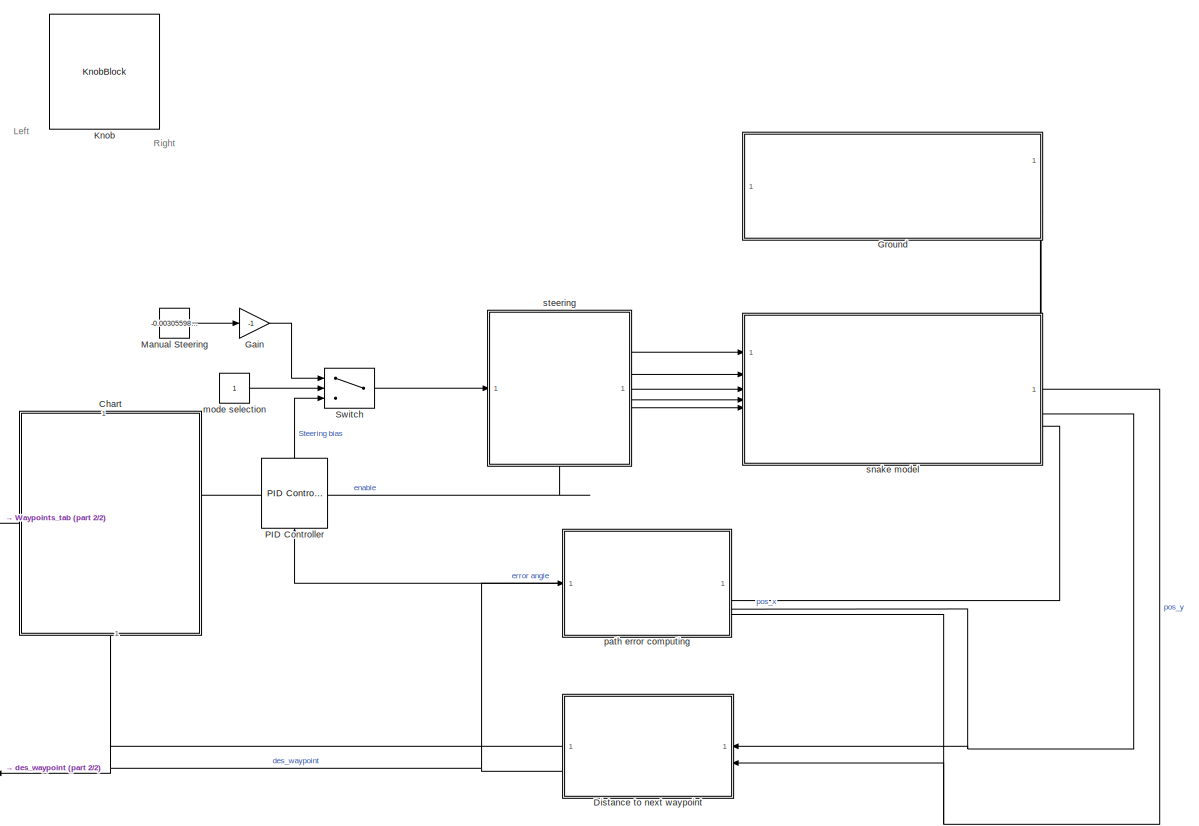
[diagram: root canvas - part 1/2, center side, full height]
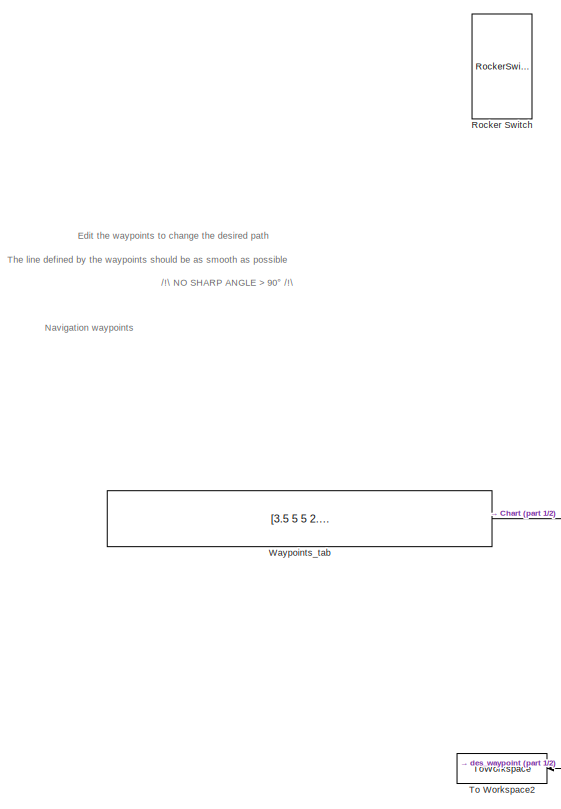
[diagram: root canvas - part 2/2, left side, full height]
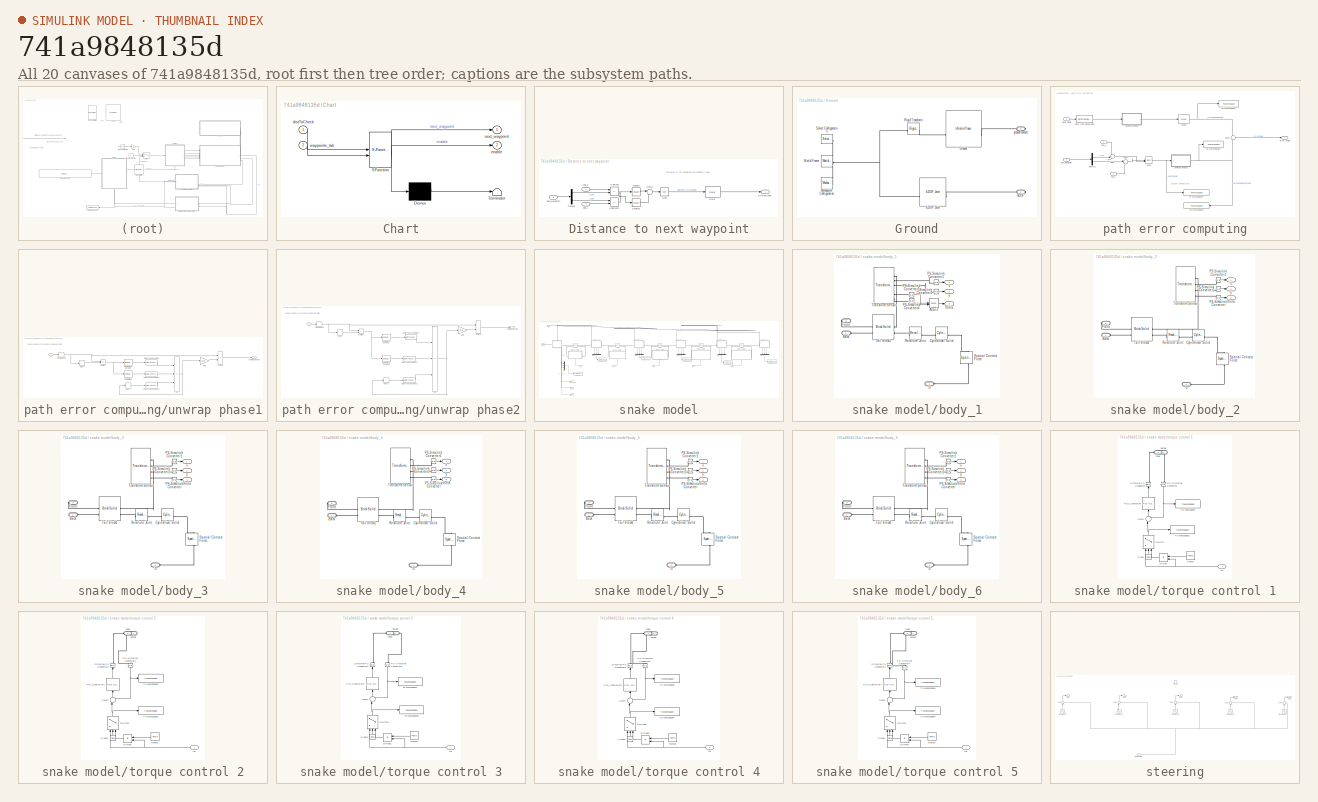
[diagram: thumbnail index - all 20 canvases of the model, root first then tree order]
MODEL slx_741a9848135d
KIND model
CONFIG AbsTol = 1e-3
CONFIG EnableMultiTasking = on
CONFIG FixedStep = auto
CONFIG MaxStep = auto
CONFIG MinStep = auto
CONFIG RelTol = 1e-4
CONFIG SampleTimeConstraint = Unconstrained
CONFIG SolverName = VariableStepAuto
CONFIG StartTime = 0.0
CONFIG StopTime = 300
WORKSPACE source: mxarray member
WORKSPACE amplitude = 0
BLOCK [SubSystem] Chart
  ErrorFcn = Stateflow.Translate.translate
  NameLocation = left
  PermitHierarchicalResolution = ExplicitOnly
  PortSchema = {"entries":[{"content":{"sides":[{"content":{"connectorIds":["Out2"]},"type":"ConnectorPlacement.EquallySpacedRectSide","uuid":"c0d765fa-9097-49b8-a9de-70f23f3b9e45"},{"content":{"connectorIds":["In1","Out1"],"side":"RIGHT"},"type":"ConnectorPlacement.EquallySpacedRectSide","uuid":"f92c980f-06f4-4bcf-9e41-1d74db91d2f5"},{"content":{"connectorIds":[],"side":"TOP"},"type":"ConnectorPlacement.Equally...<+396ch>
  SFBlockType = Chart
  TreatAsAtomicUnit = on
BLOCK [Demux] Chart/ Demux 
  Outputs = 1
BLOCK [S-Function] Chart/ SFunction 
  EnableBusSupport = on
  FunctionName = sf_sfun
  PortCounts = [2 3]
  SFcnIsStateOwnerBlock = off
  SFunctionDeploymentMode = off
  Tag = Stateflow S-Function 3
BLOCK [Terminator] Chart/ Terminator 
BLOCK [Inport] Chart/distToCheck
BLOCK [Outport] Chart/enable
  Port = 2
BLOCK [Outport] Chart/next_waypoint
BLOCK [Inport] Chart/waypoints_tab
  Port = 2
BLOCK [SubSystem] Distance to next waypoint
  PortSchema = {"entries":[{"content":{"sides":[{"content":{"connectorIds":["In1","In2"]},"type":"ConnectorPlacement.EquallySpacedRectSide","uuid":"0710ef82-c71d-4233-a5c8-bd4942ea3b45"},{"content":{"connectorIds":["Out1","In3"],"side":"RIGHT"},"type":"ConnectorPlacement.EquallySpacedRectSide","uuid":"77e7c4d7-3248-448e-8427-9562004a152f"},{"content":{"connectorIds":[],"side":"TOP"},"type":"ConnectorPlacement.Eq...<+396ch>
BLOCK [Delay] Distance to next waypoint/Delay
  DelayLength = 1
  InputPortMap = u0
  InputProcessing = Columns as channels (frame based)
  NameLocation = top
BLOCK [Demux] Distance to next waypoint/Demux
  Outputs = 2
BLOCK [Outport] Distance to next waypoint/DistToCheck
BLOCK [Sqrt] Distance to next waypoint/Sqrt
BLOCK [Math] Distance to next waypoint/Square
  Operator = square
BLOCK [Math] Distance to next waypoint/Square1
  Operator = square
BLOCK [Sum] Distance to next waypoint/Subtract
  IconShape = rectangular
  Inputs = -+
BLOCK [Sum] Distance to next waypoint/Subtract1
  IconShape = rectangular
  Inputs = +-
BLOCK [Sum] Distance to next waypoint/Sum6
  Inputs = |++
BLOCK [Inport] Distance to next waypoint/des_waypoint
  Port = 3
BLOCK [Inport] Distance to next waypoint/pos_x
  NameLocation = top
BLOCK [Inport] Distance to next waypoint/pos_y
  Port = 2
BLOCK [Gain] Gain
  Gain = -1
BLOCK [SubSystem] Ground
  PortSchema = {"entries":[{"content":{"sides":[{"content":{"connectorIds":[]},"type":"ConnectorPlacement.EquallySpacedRectSide","uuid":"14bb95ec-b163-40a6-b565-75774891ed31"},{"content":{"connectorIds":[],"side":"RIGHT"},"type":"ConnectorPlacement.EquallySpacedRectSide","uuid":"63e04a13-6d76-44f0-b3dc-57289d383e77"},{"content":{"connectorIds":[],"side":"TOP"},"type":"ConnectorPlacement.EquallySpacedRectSide","u...<+390ch>
BLOCK [Reference] Ground/6-DOF Joint  REF=sm_lib/Joints/6-DOF Joint
  SourceBlock = sm_lib/Joints/6-DOF Joint
  SourceType = 6-DOF Joint
BLOCK [PMIOPort] Ground/6DOF
  Side = Right
BLOCK [Reference] Ground/Ground  REF=sm_lib/Curves and Surfaces/Infinite Plane
  SourceBlock = sm_lib/Curves and Surfaces/Infinite Plane
  SourceType = Infinite Plane
BLOCK [Reference] Ground/Mechanism Configuration  REF=sm_lib/Utilities/Mechanism
Configuration
  SourceBlock = sm_lib/Utilities/Mechanism\nConfiguration
  SourceType = Mechanism\nConfiguration
BLOCK [Reference] Ground/Rigid Transform  REF=sm_lib/Frames and
Transforms/Rigid
Transform
  SourceBlock = sm_lib/Frames and\nTransforms/Rigid\nTransform
  SourceType = Rigid\nTransform
BLOCK [Reference] Ground/Solver Configuration  REF=nesl_utility/Solver
Configuration
  SourceBlock = nesl_utility/Solver\nConfiguration
  SourceType = Solver\nConfiguration
BLOCK [Reference] Ground/World Frame  REF=sm_lib/Frames and
Transforms/World Frame
  SourceBlock = sm_lib/Frames and\nTransforms/World Frame
  SourceType = World Frame
BLOCK [PMIOPort] Ground/ground contact
  Port = 2
  Side = Right
BLOCK [KnobBlock] Knob
  ScaleMax = 0.4
  ScaleMin = -0.4
BLOCK [Constant] Manual Steering
  Value = -0.003055989583333307
BLOCK [Reference] PID Controller  REF=slpidlib/PID Controller
  LibrarySourceBlock = simulink/Continuous/PID Controller
  NameLocation = right
  SourceBlock = slpidlib/PID Controller
  SourceType = PID 1dof
BLOCK [RockerSwitchBlock] Rocker Switch
BLOCK [Switch] Switch
  Criteria = u2 > Threshold
  InputSameDT = off
  SaturateOnIntegerOverflow = off
BLOCK [ToWorkspace] To Workspace2
  FixptAsFi = on
  MaxDataPoints = inf
  NameLocation = top
  SampleTime = -1
  SaveFormat = Timeseries
  VariableName = des_waypoint
BLOCK [Constant] Waypoints_tab
  Value = [3.5 5 5 2.5 0.5 -2.5 -4 -3.5 -1.5 2.5 6 7.5 8 6.5 3 -1.5 ; 0 -1.5 -3.5 -4.5 -3.5 -3 -4.5 -6.5 -8 -8 -7 -4.5 -1 2.5 4 3.5]
BLOCK [Constant] mode selection
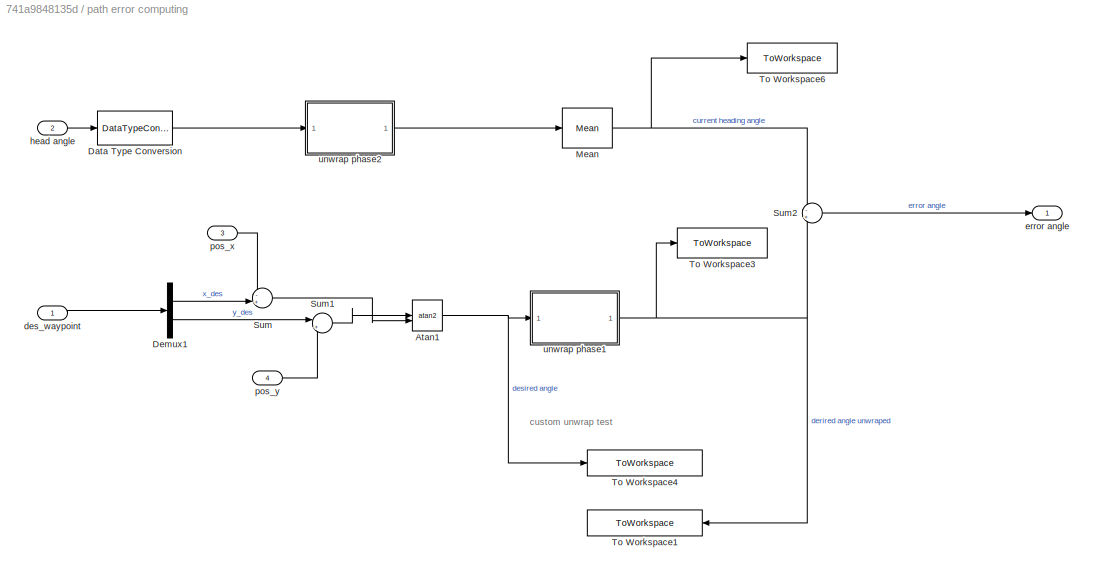
BLOCK [SubSystem] path error computing
  PortSchema = {"entries":[{"content":{"sides":[{"content":{"connectorIds":["Out1","In1"]},"type":"ConnectorPlacement.EquallySpacedRectSide","uuid":"ed7308da-0f79-401b-ae2b-bf6e23f61e0a"},{"content":{"connectorIds":["In2","In3","In4"],"side":"RIGHT"},"type":"ConnectorPlacement.EquallySpacedRectSide","uuid":"26bce074-5657-4749-bd2b-97971a2b1bde"},{"content":{"connectorIds":[],"side":"TOP"},"type":"ConnectorPlacem...<+258ch>
BLOCK [Trigonometry] path error computing/Atan1
  Operator = atan2
BLOCK [DataTypeConversion] path error computing/Data Type Conversion
  OutDataTypeStr = double
  RndMeth = Floor
  SaturateOnIntegerOverflow = off
BLOCK [Demux] path error computing/Demux1
  Outputs = 2
BLOCK [Reference] path error computing/Mean  REF=spsMeanLib/Mean
  LibrarySourceBlock = sps_lib/Sensors and Measurements/Mean
  SourceBlock = spsMeanLib/Mean
  SourceType = Mean
BLOCK [Sum] path error computing/Sum
  Inputs = -+|
BLOCK [Sum] path error computing/Sum1
  Inputs = |+-
BLOCK [Sum] path error computing/Sum2
  Inputs = -+
BLOCK [ToWorkspace] path error computing/To Workspace1
  FixptAsFi = on
  MaxDataPoints = inf
  NameLocation = top
  SampleTime = -1
  SaveFormat = Timeseries
  VariableName = angle_unwrap
BLOCK [ToWorkspace] path error computing/To Workspace3
  FixptAsFi = on
  MaxDataPoints = inf
  SampleTime = -1
  SaveFormat = Timeseries
  VariableName = des_head
BLOCK [ToWorkspace] path error computing/To Workspace4
  FixptAsFi = on
  MaxDataPoints = inf
  SampleTime = -1
  SaveFormat = Timeseries
  VariableName = non_unwrap
BLOCK [ToWorkspace] path error computing/To Workspace6
  FixptAsFi = on
  MaxDataPoints = inf
  SampleTime = -1
  SaveFormat = Timeseries
  VariableName = head_dir
BLOCK [Inport] path error computing/des_waypoint
BLOCK [Outport] path error computing/error angle
BLOCK [Inport] path error computing/head angle
  Port = 2
BLOCK [Inport] path error computing/pos_x
  Port = 3
BLOCK [Inport] path error computing/pos_y
  Port = 4
BLOCK [SubSystem] path error computing/unwrap phase1
BLOCK [Sum] path error computing/unwrap phase1/Add
  IconShape = rectangular
  Inputs = -++
BLOCK [Reference] path error computing/unwrap phase1/Compare To Constant  REF=simulink/Logic and Bit
Operations/Compare
To Constant
  SourceBlock = simulink/Logic and Bit\nOperations/Compare\nTo Constant
  SourceType = Compare To Constant
BLOCK [Reference] path error computing/unwrap phase1/Compare To Constant1  REF=simulink/Logic and Bit
Operations/Compare
To Constant
  SourceBlock = simulink/Logic and Bit\nOperations/Compare\nTo Constant
  SourceType = Compare To Constant
BLOCK [DataTypeConversion] path error computing/unwrap phase1/Data Type Conversion
  OutDataTypeStr = double
  RndMeth = Floor
  SaturateOnIntegerOverflow = off
BLOCK [DataTypeConversion] path error computing/unwrap phase1/Data Type Conversion1
  OutDataTypeStr = double
  RndMeth = Floor
  SaturateOnIntegerOverflow = off
BLOCK [DataTypeConversion] path error computing/unwrap phase1/Data Type Conversion2
  OutDataTypeStr = double
  RndMeth = Floor
  SaturateOnIntegerOverflow = off
BLOCK [Delay] path error computing/unwrap phase1/Delay
  InputPortMap = u0
BLOCK [Delay] path error computing/unwrap phase1/Delay1
  InputPortMap = u0
BLOCK [Gain] path error computing/unwrap phase1/Gain
  Gain = 2*pi
BLOCK [Sum] path error computing/unwrap phase1/Subtract
  IconShape = rectangular
  Inputs = +-
BLOCK [Sum] path error computing/unwrap phase1/Subtract1
  IconShape = rectangular
BLOCK [ZeroOrderHold] path error computing/unwrap phase1/Zero-Order Hold
  SampleTime = 0.05
BLOCK [Inport] path error computing/unwrap phase1/in
BLOCK [Outport] path error computing/unwrap phase1/unwraped angle
BLOCK [SubSystem] path error computing/unwrap phase2
BLOCK [Sum] path error computing/unwrap phase2/Add
  IconShape = rectangular
  Inputs = -++
BLOCK [Reference] path error computing/unwrap phase2/Compare To Constant  REF=simulink/Logic and Bit
Operations/Compare
To Constant
  SourceBlock = simulink/Logic and Bit\nOperations/Compare\nTo Constant
  SourceType = Compare To Constant
BLOCK [Reference] path error computing/unwrap phase2/Compare To Constant1  REF=simulink/Logic and Bit
Operations/Compare
To Constant
  SourceBlock = simulink/Logic and Bit\nOperations/Compare\nTo Constant
  SourceType = Compare To Constant
BLOCK [DataTypeConversion] path error computing/unwrap phase2/Data Type Conversion2
  OutDataTypeStr = double
  RndMeth = Floor
  SaturateOnIntegerOverflow = off
BLOCK [DataTypeConversion] path error computing/unwrap phase2/Data Type Conversion3
  OutDataTypeStr = double
  RndMeth = Floor
  SaturateOnIntegerOverflow = off
BLOCK [DataTypeConversion] path error computing/unwrap phase2/Data Type Conversion4
  OutDataTypeStr = double
  RndMeth = Floor
  SaturateOnIntegerOverflow = off
BLOCK [Delay] path error computing/unwrap phase2/Delay
  InputPortMap = u0
BLOCK [Delay] path error computing/unwrap phase2/Delay1
  InputPortMap = u0
BLOCK [Gain] path error computing/unwrap phase2/Gain
  Gain = 2*pi
BLOCK [Sum] path error computing/unwrap phase2/Subtract
  IconShape = rectangular
  Inputs = +-
BLOCK [Sum] path error computing/unwrap phase2/Subtract1
  IconShape = rectangular
BLOCK [ZeroOrderHold] path error computing/unwrap phase2/Zero-Order Hold
  SampleTime = 0.05
BLOCK [Inport] path error computing/unwrap phase2/in
BLOCK [Outport] path error computing/unwrap phase2/unwraped angle
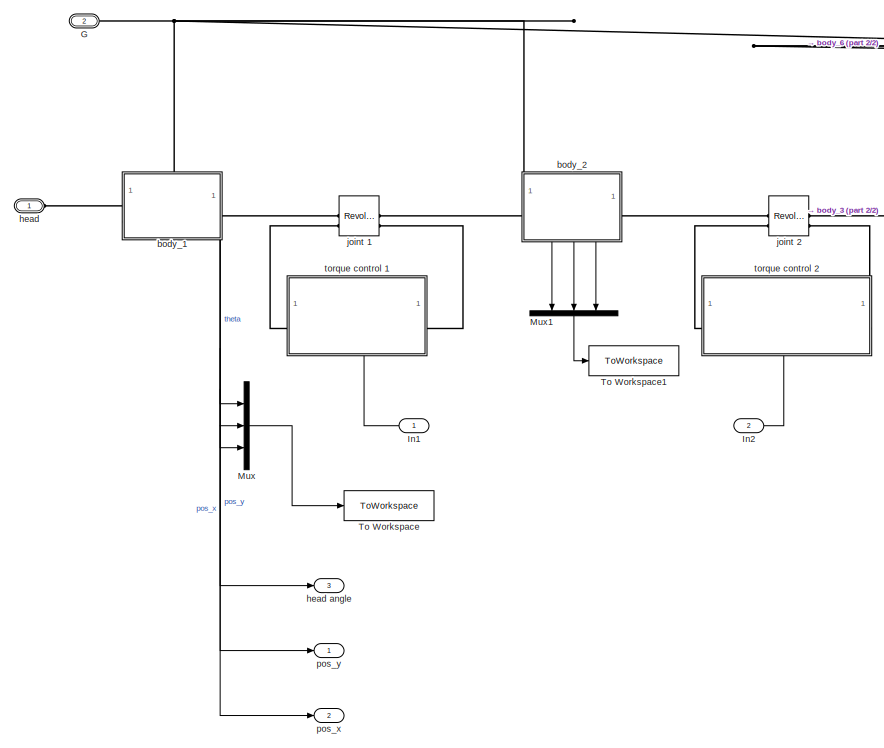
[diagram: snake model - part 1/2, left side, full height]
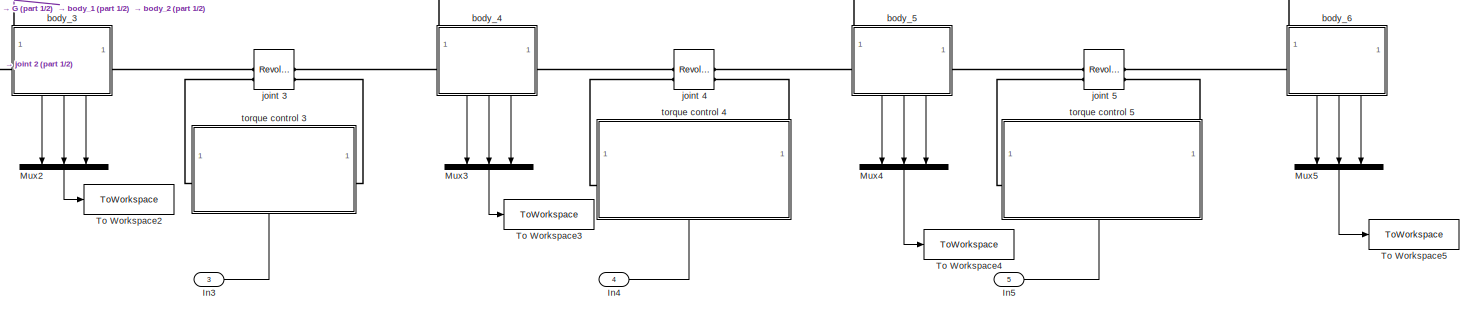
[diagram: snake model - part 2/2, middle right region]
BLOCK [SubSystem] snake model
  PortSchema = {"entries":[{"content":{"sides":[{"content":{"connectorIds":["In1","In2","In3","In4","In5"]},"type":"ConnectorPlacement.EquallySpacedRectSide","uuid":"e6ddf332-9d27-40b1-9cd6-9b80f6c39944"},{"content":{"connectorIds":["Out1","Out2","Out3"],"side":"RIGHT"},"type":"ConnectorPlacement.EquallySpacedRectSide","uuid":"793601eb-a77d-46e6-bbef-b4ac20caf224"},{"content":{"connectorIds":["LConn1","LConn2"],...<+439ch>
BLOCK [PMIOPort] snake model/G
  Port = 2
  Side = Left
BLOCK [Inport] snake model/In1
  NameLocation = top
BLOCK [Inport] snake model/In2
  Port = 2
BLOCK [Inport] snake model/In3
  Port = 3
BLOCK [Inport] snake model/In4
  Port = 4
BLOCK [Inport] snake model/In5
  Port = 5
BLOCK [Mux] snake model/Mux
  DisplayOption = bar
  Inputs = 3
BLOCK [Mux] snake model/Mux1
  DisplayOption = bar
  Inputs = 3
  NameLocation = left
BLOCK [Mux] snake model/Mux2
  DisplayOption = bar
  Inputs = 3
  NameLocation = left
BLOCK [Mux] snake model/Mux3
  DisplayOption = bar
  Inputs = 3
  NameLocation = left
BLOCK [Mux] snake model/Mux4
  DisplayOption = bar
  Inputs = 3
  NameLocation = left
BLOCK [Mux] snake model/Mux5
  DisplayOption = bar
  Inputs = 3
  NameLocation = left
BLOCK [ToWorkspace] snake model/To Workspace
  FixptAsFi = on
  MaxDataPoints = inf
  SampleTime = -1
  SaveFormat = Timeseries
  VariableName = body_1
BLOCK [ToWorkspace] snake model/To Workspace1
  FixptAsFi = on
  MaxDataPoints = inf
  SampleTime = -1
  SaveFormat = Timeseries
  VariableName = body_2
BLOCK [ToWorkspace] snake model/To Workspace2
  FixptAsFi = on
  MaxDataPoints = inf
  SampleTime = -1
  SaveFormat = Timeseries
  VariableName = body_3
BLOCK [ToWorkspace] snake model/To Workspace3
  FixptAsFi = on
  MaxDataPoints = inf
  SampleTime = -1
  SaveFormat = Timeseries
  VariableName = body_4
BLOCK [ToWorkspace] snake model/To Workspace4
  FixptAsFi = on
  MaxDataPoints = inf
  SampleTime = -1
  SaveFormat = Timeseries
  VariableName = body_5
BLOCK [ToWorkspace] snake model/To Workspace5
  FixptAsFi = on
  MaxDataPoints = inf
  SampleTime = -1
  SaveFormat = Timeseries
  VariableName = body_6
BLOCK [SubSystem] snake model/body_1
  PortSchema = {"entries":[{"content":{"sides":[{"content":{"connectorIds":["LConn1"]},"type":"ConnectorPlacement.EquallySpacedRectSide","uuid":"cfd545d0-0ca8-493e-9d9c-9574918c6216"},{"content":{"connectorIds":["RConn1"],"side":"RIGHT"},"type":"ConnectorPlacement.EquallySpacedRectSide","uuid":"f4db1f33-ebca-4648-9629-9a34821dbae4"},{"content":{"connectorIds":["LConn2"],"side":"TOP"},"type":"ConnectorPlacement.E...<+417ch>  <repeated x6 — deduplicated; at blocks: body_1, body_2, body_3, body_4, body_5, body_6>
BLOCK [Trigonometry] snake model/body_1/Atan2
  Operator = atan2
BLOCK [PMIOPort] snake model/body_1/Back
  NameLocation = top
  Side = Left
BLOCK [Reference] snake model/body_1/Cylindrical Solid  REF=sm_lib/Body Elements/Cylindrical Solid
  NameLocation = top
  SourceBlock = sm_lib/Body Elements/Cylindrical Solid
  SourceType = Cylindrical Solid
BLOCK [PMIOPort] snake model/body_1/Front
  NameLocation = top
  Port = 3
  Side = Right
BLOCK [PMIOPort] snake model/body_1/G
  Port = 2
  Side = Left
BLOCK [Reference] snake model/body_1/PS-Simulink Converter1  REF=nesl_utility/PS-Simulink
Converter
  SourceBlock = nesl_utility/PS-Simulink\nConverter
  SourceType = PS-Simulink\nConverter
BLOCK [Reference] snake model/body_1/PS-Simulink Converter2  REF=nesl_utility/PS-Simulink
Converter
  SourceBlock = nesl_utility/PS-Simulink\nConverter
  SourceType = PS-Simulink\nConverter
BLOCK [Reference] snake model/body_1/PS-Simulink Converter3  REF=nesl_utility/PS-Simulink
Converter
  SourceBlock = nesl_utility/PS-Simulink\nConverter
  SourceType = PS-Simulink\nConverter
BLOCK [Reference] snake model/body_1/PS-Simulink Converter4  REF=nesl_utility/PS-Simulink
Converter
  SourceBlock = nesl_utility/PS-Simulink\nConverter
  SourceType = PS-Simulink\nConverter
BLOCK [Reference] snake model/body_1/Revolute Joint  REF=sm_lib/Joints/Revolute Joint
  NameLocation = top
  SourceBlock = sm_lib/Joints/Revolute Joint
  SourceType = Revolute Joint
BLOCK [Reference] snake model/body_1/Spatial Contact Force  REF=sm_lib/Forces and
Torques/Spatial
Contact Force
  NameLocation = right
  SourceBlock = sm_lib/Forces and\nTorques/Spatial\nContact Force
  SourceType = Spatial\nContact Force
BLOCK [Reference] snake model/body_1/Tail block1  REF=sm_lib/Body Elements/Brick Solid
  NameLocation = top
  SourceBlock = sm_lib/Body Elements/Brick Solid
  SourceType = Brick Solid
BLOCK [Reference] snake model/body_1/Transform Sensor  REF=sm_lib/Frames and
Transforms/Transform
Sensor
  SourceBlock = sm_lib/Frames and\nTransforms/Transform\nSensor
  SourceType = Transform\nSensor
BLOCK [Outport] snake model/body_1/theta
  Port = 3
BLOCK [Outport] snake model/body_1/x
BLOCK [Outport] snake model/body_1/y
  Port = 2
BLOCK [SubSystem] snake model/body_2
BLOCK [PMIOPort] snake model/body_2/Back
  NameLocation = top
  Side = Left
BLOCK [Reference] snake model/body_2/Cylindrical Solid  REF=sm_lib/Body Elements/Cylindrical Solid
  NameLocation = top
  SourceBlock = sm_lib/Body Elements/Cylindrical Solid
  SourceType = Cylindrical Solid
BLOCK [PMIOPort] snake model/body_2/Front
  NameLocation = top
  Port = 3
  Side = Right
BLOCK [PMIOPort] snake model/body_2/G
  Port = 2
  Side = Left
BLOCK [Reference] snake model/body_2/PS-Simulink Converter  REF=nesl_utility/PS-Simulink
Converter
  SourceBlock = nesl_utility/PS-Simulink\nConverter
  SourceType = PS-Simulink\nConverter
BLOCK [Reference] snake model/body_2/PS-Simulink Converter1  REF=nesl_utility/PS-Simulink
Converter
  SourceBlock = nesl_utility/PS-Simulink\nConverter
  SourceType = PS-Simulink\nConverter
BLOCK [Reference] snake model/body_2/PS-Simulink Converter2  REF=nesl_utility/PS-Simulink
Converter
  SourceBlock = nesl_utility/PS-Simulink\nConverter
  SourceType = PS-Simulink\nConverter
BLOCK [Reference] snake model/body_2/Revolute Joint  REF=sm_lib/Joints/Revolute Joint
  NameLocation = top
  SourceBlock = sm_lib/Joints/Revolute Joint
  SourceType = Revolute Joint
BLOCK [Reference] snake model/body_2/Spatial Contact Force  REF=sm_lib/Forces and
Torques/Spatial
Contact Force
  NameLocation = right
  SourceBlock = sm_lib/Forces and\nTorques/Spatial\nContact Force
  SourceType = Spatial\nContact Force
BLOCK [Reference] snake model/body_2/Tail block1  REF=sm_lib/Body Elements/Brick Solid
  NameLocation = top
  SourceBlock = sm_lib/Body Elements/Brick Solid
  SourceType = Brick Solid
BLOCK [Reference] snake model/body_2/Transform Sensor  REF=sm_lib/Frames and
Transforms/Transform
Sensor
  SourceBlock = sm_lib/Frames and\nTransforms/Transform\nSensor
  SourceType = Transform\nSensor
BLOCK [Outport] snake model/body_2/theta
  Port = 3
BLOCK [Outport] snake model/body_2/x
BLOCK [Outport] snake model/body_2/y
  Port = 2
BLOCK [SubSystem] snake model/body_3
BLOCK [PMIOPort] snake model/body_3/Back
  NameLocation = top
  Side = Left
BLOCK [Reference] snake model/body_3/Cylindrical Solid  REF=sm_lib/Body Elements/Cylindrical Solid
  NameLocation = top
  SourceBlock = sm_lib/Body Elements/Cylindrical Solid
  SourceType = Cylindrical Solid
BLOCK [PMIOPort] snake model/body_3/Front
  NameLocation = top
  Port = 3
  Side = Right
BLOCK [PMIOPort] snake model/body_3/G
  Port = 2
  Side = Left
BLOCK [Reference] snake model/body_3/PS-Simulink Converter  REF=nesl_utility/PS-Simulink
Converter
  SourceBlock = nesl_utility/PS-Simulink\nConverter
  SourceType = PS-Simulink\nConverter
BLOCK [Reference] snake model/body_3/PS-Simulink Converter1  REF=nesl_utility/PS-Simulink
Converter
  SourceBlock = nesl_utility/PS-Simulink\nConverter
  SourceType = PS-Simulink\nConverter
BLOCK [Reference] snake model/body_3/PS-Simulink Converter2  REF=nesl_utility/PS-Simulink
Converter
  SourceBlock = nesl_utility/PS-Simulink\nConverter
  SourceType = PS-Simulink\nConverter
BLOCK [Reference] snake model/body_3/Revolute Joint  REF=sm_lib/Joints/Revolute Joint
  NameLocation = top
  SourceBlock = sm_lib/Joints/Revolute Joint
  SourceType = Revolute Joint
BLOCK [Reference] snake model/body_3/Spatial Contact Force  REF=sm_lib/Forces and
Torques/Spatial
Contact Force
  NameLocation = right
  SourceBlock = sm_lib/Forces and\nTorques/Spatial\nContact Force
  SourceType = Spatial\nContact Force
BLOCK [Reference] snake model/body_3/Tail block1  REF=sm_lib/Body Elements/Brick Solid
  NameLocation = top
  SourceBlock = sm_lib/Body Elements/Brick Solid
  SourceType = Brick Solid
BLOCK [Reference] snake model/body_3/Transform Sensor  REF=sm_lib/Frames and
Transforms/Transform
Sensor
  SourceBlock = sm_lib/Frames and\nTransforms/Transform\nSensor
  SourceType = Transform\nSensor
BLOCK [Outport] snake model/body_3/theta
  Port = 3
BLOCK [Outport] snake model/body_3/x
BLOCK [Outport] snake model/body_3/y
  Port = 2
BLOCK [SubSystem] snake model/body_4
BLOCK [PMIOPort] snake model/body_4/Back
  NameLocation = top
  Side = Left
BLOCK [Reference] snake model/body_4/Cylindrical Solid  REF=sm_lib/Body Elements/Cylindrical Solid
  NameLocation = top
  SourceBlock = sm_lib/Body Elements/Cylindrical Solid
  SourceType = Cylindrical Solid
BLOCK [PMIOPort] snake model/body_4/Front
  NameLocation = top
  Port = 3
  Side = Right
BLOCK [PMIOPort] snake model/body_4/G
  Port = 2
  Side = Left
BLOCK [Reference] snake model/body_4/PS-Simulink Converter  REF=nesl_utility/PS-Simulink
Converter
  SourceBlock = nesl_utility/PS-Simulink\nConverter
  SourceType = PS-Simulink\nConverter
BLOCK [Reference] snake model/body_4/PS-Simulink Converter1  REF=nesl_utility/PS-Simulink
Converter
  SourceBlock = nesl_utility/PS-Simulink\nConverter
  SourceType = PS-Simulink\nConverter
BLOCK [Reference] snake model/body_4/PS-Simulink Converter2  REF=nesl_utility/PS-Simulink
Converter
  SourceBlock = nesl_utility/PS-Simulink\nConverter
  SourceType = PS-Simulink\nConverter
BLOCK [Reference] snake model/body_4/Revolute Joint  REF=sm_lib/Joints/Revolute Joint
  NameLocation = top
  SourceBlock = sm_lib/Joints/Revolute Joint
  SourceType = Revolute Joint
BLOCK [Reference] snake model/body_4/Spatial Contact Force  REF=sm_lib/Forces and
Torques/Spatial
Contact Force
  NameLocation = right
  SourceBlock = sm_lib/Forces and\nTorques/Spatial\nContact Force
  SourceType = Spatial\nContact Force
BLOCK [Reference] snake model/body_4/Tail block1  REF=sm_lib/Body Elements/Brick Solid
  NameLocation = top
  SourceBlock = sm_lib/Body Elements/Brick Solid
  SourceType = Brick Solid
BLOCK [Reference] snake model/body_4/Transform Sensor  REF=sm_lib/Frames and
Transforms/Transform
Sensor
  SourceBlock = sm_lib/Frames and\nTransforms/Transform\nSensor
  SourceType = Transform\nSensor
BLOCK [Outport] snake model/body_4/theta
  Port = 3
BLOCK [Outport] snake model/body_4/x
BLOCK [Outport] snake model/body_4/y
  Port = 2
BLOCK [SubSystem] snake model/body_5
BLOCK [PMIOPort] snake model/body_5/Back
  NameLocation = top
  Side = Left
BLOCK [Reference] snake model/body_5/Cylindrical Solid  REF=sm_lib/Body Elements/Cylindrical Solid
  NameLocation = top
  SourceBlock = sm_lib/Body Elements/Cylindrical Solid
  SourceType = Cylindrical Solid
BLOCK [PMIOPort] snake model/body_5/Front
  NameLocation = top
  Port = 3
  Side = Right
BLOCK [PMIOPort] snake model/body_5/G
  Port = 2
  Side = Left
BLOCK [Reference] snake model/body_5/PS-Simulink Converter  REF=nesl_utility/PS-Simulink
Converter
  SourceBlock = nesl_utility/PS-Simulink\nConverter
  SourceType = PS-Simulink\nConverter
BLOCK [Reference] snake model/body_5/PS-Simulink Converter1  REF=nesl_utility/PS-Simulink
Converter
  SourceBlock = nesl_utility/PS-Simulink\nConverter
  SourceType = PS-Simulink\nConverter
BLOCK [Reference] snake model/body_5/PS-Simulink Converter2  REF=nesl_utility/PS-Simulink
Converter
  SourceBlock = nesl_utility/PS-Simulink\nConverter
  SourceType = PS-Simulink\nConverter
BLOCK [Reference] snake model/body_5/Revolute Joint  REF=sm_lib/Joints/Revolute Joint
  NameLocation = top
  SourceBlock = sm_lib/Joints/Revolute Joint
  SourceType = Revolute Joint
BLOCK [Reference] snake model/body_5/Spatial Contact Force  REF=sm_lib/Forces and
Torques/Spatial
Contact Force
  NameLocation = right
  SourceBlock = sm_lib/Forces and\nTorques/Spatial\nContact Force
  SourceType = Spatial\nContact Force
BLOCK [Reference] snake model/body_5/Tail block1  REF=sm_lib/Body Elements/Brick Solid
  NameLocation = top
  SourceBlock = sm_lib/Body Elements/Brick Solid
  SourceType = Brick Solid
BLOCK [Reference] snake model/body_5/Transform Sensor  REF=sm_lib/Frames and
Transforms/Transform
Sensor
  SourceBlock = sm_lib/Frames and\nTransforms/Transform\nSensor
  SourceType = Transform\nSensor
BLOCK [Outport] snake model/body_5/theta
  Port = 3
BLOCK [Outport] snake model/body_5/x
BLOCK [Outport] snake model/body_5/y
  Port = 2
BLOCK [SubSystem] snake model/body_6
BLOCK [PMIOPort] snake model/body_6/Back
  NameLocation = top
  Side = Left
BLOCK [Reference] snake model/body_6/Cylindrical Solid  REF=sm_lib/Body Elements/Cylindrical Solid
  NameLocation = top
  SourceBlock = sm_lib/Body Elements/Cylindrical Solid
  SourceType = Cylindrical Solid
BLOCK [PMIOPort] snake model/body_6/Front
  NameLocation = top
  Port = 3
  Side = Right
BLOCK [PMIOPort] snake model/body_6/G
  Port = 2
  Side = Left
BLOCK [Reference] snake model/body_6/PS-Simulink Converter  REF=nesl_utility/PS-Simulink
Converter
  SourceBlock = nesl_utility/PS-Simulink\nConverter
  SourceType = PS-Simulink\nConverter
BLOCK [Reference] snake model/body_6/PS-Simulink Converter1  REF=nesl_utility/PS-Simulink
Converter
  SourceBlock = nesl_utility/PS-Simulink\nConverter
  SourceType = PS-Simulink\nConverter
BLOCK [Reference] snake model/body_6/PS-Simulink Converter2  REF=nesl_utility/PS-Simulink
Converter
  SourceBlock = nesl_utility/PS-Simulink\nConverter
  SourceType = PS-Simulink\nConverter
BLOCK [Reference] snake model/body_6/Revolute Joint  REF=sm_lib/Joints/Revolute Joint
  NameLocation = top
  SourceBlock = sm_lib/Joints/Revolute Joint
  SourceType = Revolute Joint
BLOCK [Reference] snake model/body_6/Spatial Contact Force  REF=sm_lib/Forces and
Torques/Spatial
Contact Force
  NameLocation = right
  SourceBlock = sm_lib/Forces and\nTorques/Spatial\nContact Force
  SourceType = Spatial\nContact Force
BLOCK [Reference] snake model/body_6/Tail block1  REF=sm_lib/Body Elements/Brick Solid
  NameLocation = top
  SourceBlock = sm_lib/Body Elements/Brick Solid
  SourceType = Brick Solid
BLOCK [Reference] snake model/body_6/Transform Sensor  REF=sm_lib/Frames and
Transforms/Transform
Sensor
  SourceBlock = sm_lib/Frames and\nTransforms/Transform\nSensor
  SourceType = Transform\nSensor
BLOCK [Outport] snake model/body_6/theta
  Port = 3
BLOCK [Outport] snake model/body_6/x
BLOCK [Outport] snake model/body_6/y
  Port = 2
BLOCK [PMIOPort] snake model/head
  Side = Left
BLOCK [Outport] snake model/head angle
  Port = 3
BLOCK [Reference] snake model/joint 1  REF=sm_lib/Joints/Revolute Joint
  SourceBlock = sm_lib/Joints/Revolute Joint
  SourceType = Revolute Joint
BLOCK [Reference] snake model/joint 2  REF=sm_lib/Joints/Revolute Joint
  SourceBlock = sm_lib/Joints/Revolute Joint
  SourceType = Revolute Joint
BLOCK [Reference] snake model/joint 3  REF=sm_lib/Joints/Revolute Joint
  SourceBlock = sm_lib/Joints/Revolute Joint
  SourceType = Revolute Joint
BLOCK [Reference] snake model/joint 4  REF=sm_lib/Joints/Revolute Joint
  SourceBlock = sm_lib/Joints/Revolute Joint
  SourceType = Revolute Joint
BLOCK [Reference] snake model/joint 5  REF=sm_lib/Joints/Revolute Joint
  SourceBlock = sm_lib/Joints/Revolute Joint
  SourceType = Revolute Joint
BLOCK [Outport] snake model/pos_x
  Port = 2
BLOCK [Outport] snake model/pos_y
BLOCK [SubSystem] snake model/torque control 1
  PortSchema = {"entries":[{"content":{"sides":[{"content":{"connectorIds":["LConn1"]},"type":"ConnectorPlacement.EquallySpacedRectSide","uuid":"c3b10f57-dda1-40d5-9599-b5ff34e42a81"},{"content":{"connectorIds":["RConn1"],"side":"RIGHT"},"type":"ConnectorPlacement.EquallySpacedRectSide","uuid":"f851f931-19d5-4ec6-a78c-ff43011b4c5e"},{"content":{"connectorIds":[],"side":"TOP"},"type":"ConnectorPlacement.EquallySp...<+394ch>
BLOCK [Clock] snake model/torque control 1/Clock
  NameLocation = right
BLOCK [Product] snake model/torque control 1/Divide
  Inputs = **
  NameLocation = top
BLOCK [Inport] snake model/torque control 1/In1
BLOCK [Reference] snake model/torque control 1/PID_Controller  REF=slpidlib/PID Controller
  LibrarySourceBlock = simulink/Continuous/PID Controller
  NameLocation = right
  SourceBlock = slpidlib/PID Controller
  SourceType = PID 1dof
BLOCK [Reference] snake model/torque control 1/PS-Simulink Converter  REF=nesl_utility/PS-Simulink
Converter
  NameLocation = left
  SourceBlock = nesl_utility/PS-Simulink\nConverter
  SourceType = PS-Simulink\nConverter
BLOCK [Reference] snake model/torque control 1/Ramp  REF=simulink/Sources/Ramp
  NameLocation = top
  SourceBlock = simulink/Sources/Ramp
  SourceType = Ramp
BLOCK [Reference] snake model/torque control 1/Simulink-PS Converter  REF=nesl_utility/Simulink-PS
Converter
  NameLocation = right
  SourceBlock = nesl_utility/Simulink-PS\nConverter
  SourceType = Simulink-PS\nConverter
BLOCK [Sum] snake model/torque control 1/Sum1
  Inputs = |+-
  NameLocation = right
BLOCK [Switch] snake model/torque control 1/Switch
  InputSameDT = off
  NameLocation = right
  SaturateOnIntegerOverflow = off
  Threshold = 2
BLOCK [ToWorkspace] snake model/torque control 1/To Workspace
  FixptAsFi = on
  MaxDataPoints = inf
  SampleTime = -1
  SaveFormat = Timeseries
  VariableName = pos1
BLOCK [ToWorkspace] snake model/torque control 1/To Workspace1
  FixptAsFi = on
  MaxDataPoints = inf
  SampleTime = -1
  SaveFormat = Timeseries
  VariableName = des1
BLOCK [PMIOPort] snake model/torque control 1/input
  Port = 2
  Side = Right
BLOCK [PMIOPort] snake model/torque control 1/output
  Side = Left
BLOCK [SubSystem] snake model/torque control 2
  PortSchema = {"entries":[{"content":{"sides":[{"content":{"connectorIds":["LConn1"]},"type":"ConnectorPlacement.EquallySpacedRectSide","uuid":"d3b18d83-77b3-4cd3-8376-33c235fde2fc"},{"content":{"connectorIds":["RConn1"],"side":"RIGHT"},"type":"ConnectorPlacement.EquallySpacedRectSide","uuid":"bef515f5-fd6e-4dac-9d9f-2e7fb6963021"},{"content":{"connectorIds":[],"side":"TOP"},"type":"ConnectorPlacement.EquallySp...<+394ch>  <repeated x3 — deduplicated; at blocks: torque control 2, torque control 4, torque control 5>
BLOCK [Clock] snake model/torque control 2/Clock1
  NameLocation = right
BLOCK [Product] snake model/torque control 2/Divide1
  Inputs = **
  NameLocation = top
BLOCK [Inport] snake model/torque control 2/In1
BLOCK [Reference] snake model/torque control 2/PID_Controller1  REF=slpidlib/PID Controller
  LibrarySourceBlock = simulink/Continuous/PID Controller
  NameLocation = right
  SourceBlock = slpidlib/PID Controller
  SourceType = PID 1dof
BLOCK [Reference] snake model/torque control 2/PS-Simulink Converter1  REF=nesl_utility/PS-Simulink
Converter
  NameLocation = left
  SourceBlock = nesl_utility/PS-Simulink\nConverter
  SourceType = PS-Simulink\nConverter
BLOCK [Reference] snake model/torque control 2/Ramp1  REF=simulink/Sources/Ramp
  NameLocation = top
  SourceBlock = simulink/Sources/Ramp
  SourceType = Ramp
BLOCK [Reference] snake model/torque control 2/Simulink-PS Converter1  REF=nesl_utility/Simulink-PS
Converter
  NameLocation = right
  SourceBlock = nesl_utility/Simulink-PS\nConverter
  SourceType = Simulink-PS\nConverter
BLOCK [Sum] snake model/torque control 2/Sum2
  Inputs = |+-
  NameLocation = right
BLOCK [Switch] snake model/torque control 2/Switch1
  InputSameDT = off
  NameLocation = right
  SaturateOnIntegerOverflow = off
  Threshold = 2
BLOCK [ToWorkspace] snake model/torque control 2/To Workspace2
  FixptAsFi = on
  MaxDataPoints = inf
  SampleTime = -1
  SaveFormat = Timeseries
  VariableName = pos2
BLOCK [ToWorkspace] snake model/torque control 2/To Workspace3
  FixptAsFi = on
  MaxDataPoints = inf
  SampleTime = -1
  SaveFormat = Timeseries
  VariableName = des2
BLOCK [PMIOPort] snake model/torque control 2/input
  Port = 2
  Side = Right
BLOCK [PMIOPort] snake model/torque control 2/output
  Side = Left
BLOCK [SubSystem] snake model/torque control 3
  PortSchema = {"entries":[{"content":{"sides":[{"content":{"connectorIds":["LConn1"]},"type":"ConnectorPlacement.EquallySpacedRectSide","uuid":"c3b10f57-dda1-40d5-9599-b5ff34e42a81"},{"content":{"connectorIds":["RConn1"],"side":"RIGHT"},"type":"ConnectorPlacement.EquallySpacedRectSide","uuid":"f851f931-19d5-4ec6-a78c-ff43011b4c5e"},{"content":{"connectorIds":[],"side":"TOP"},"type":"ConnectorPlacement.EquallySp...<+394ch>
BLOCK [Clock] snake model/torque control 3/Clock2
  NameLocation = right
BLOCK [Product] snake model/torque control 3/Divide2
  Inputs = **
  NameLocation = top
BLOCK [Inport] snake model/torque control 3/In1
BLOCK [Reference] snake model/torque control 3/PID_Controller2  REF=slpidlib/PID Controller
  LibrarySourceBlock = simulink/Continuous/PID Controller
  NameLocation = right
  SourceBlock = slpidlib/PID Controller
  SourceType = PID 1dof
BLOCK [Reference] snake model/torque control 3/PS-Simulink Converter2  REF=nesl_utility/PS-Simulink
Converter
  NameLocation = left
  SourceBlock = nesl_utility/PS-Simulink\nConverter
  SourceType = PS-Simulink\nConverter
BLOCK [Reference] snake model/torque control 3/Ramp2  REF=simulink/Sources/Ramp
  NameLocation = top
  SourceBlock = simulink/Sources/Ramp
  SourceType = Ramp
BLOCK [Reference] snake model/torque control 3/Simulink-PS Converter2  REF=nesl_utility/Simulink-PS
Converter
  NameLocation = right
  SourceBlock = nesl_utility/Simulink-PS\nConverter
  SourceType = Simulink-PS\nConverter
BLOCK [Sum] snake model/torque control 3/Sum3
  Inputs = |+-
  NameLocation = right
BLOCK [Switch] snake model/torque control 3/Switch2
  InputSameDT = off
  NameLocation = right
  SaturateOnIntegerOverflow = off
  Threshold = 2
BLOCK [ToWorkspace] snake model/torque control 3/To Workspace4
  FixptAsFi = on
  MaxDataPoints = inf
  SampleTime = -1
  SaveFormat = Timeseries
  VariableName = pos3
BLOCK [ToWorkspace] snake model/torque control 3/To Workspace5
  FixptAsFi = on
  MaxDataPoints = inf
  SampleTime = -1
  SaveFormat = Timeseries
  VariableName = des3
BLOCK [PMIOPort] snake model/torque control 3/input
  Port = 2
  Side = Right
BLOCK [PMIOPort] snake model/torque control 3/output
  Side = Left
BLOCK [SubSystem] snake model/torque control 4
BLOCK [Clock] snake model/torque control 4/Clock3
  NameLocation = right
BLOCK [Product] snake model/torque control 4/Divide3
  Inputs = **
  NameLocation = top
BLOCK [Inport] snake model/torque control 4/In1
BLOCK [Reference] snake model/torque control 4/PID_Controller3  REF=slpidlib/PID Controller
  LibrarySourceBlock = simulink/Continuous/PID Controller
  NameLocation = right
  SourceBlock = slpidlib/PID Controller
  SourceType = PID 1dof
BLOCK [Reference] snake model/torque control 4/PS-Simulink Converter3  REF=nesl_utility/PS-Simulink
Converter
  NameLocation = left
  SourceBlock = nesl_utility/PS-Simulink\nConverter
  SourceType = PS-Simulink\nConverter
BLOCK [Reference] snake model/torque control 4/Ramp3  REF=simulink/Sources/Ramp
  NameLocation = top
  SourceBlock = simulink/Sources/Ramp
  SourceType = Ramp
BLOCK [Reference] snake model/torque control 4/Simulink-PS Converter3  REF=nesl_utility/Simulink-PS
Converter
  NameLocation = right
  SourceBlock = nesl_utility/Simulink-PS\nConverter
  SourceType = Simulink-PS\nConverter
BLOCK [Sum] snake model/torque control 4/Sum4
  Inputs = |+-
  NameLocation = right
BLOCK [Switch] snake model/torque control 4/Switch3
  InputSameDT = off
  NameLocation = right
  SaturateOnIntegerOverflow = off
  Threshold = 2
BLOCK [ToWorkspace] snake model/torque control 4/To Workspace6
  FixptAsFi = on
  MaxDataPoints = inf
  SampleTime = -1
  SaveFormat = Timeseries
  VariableName = pos4
BLOCK [ToWorkspace] snake model/torque control 4/To Workspace7
  FixptAsFi = on
  MaxDataPoints = inf
  SampleTime = -1
  SaveFormat = Timeseries
  VariableName = des4
BLOCK [PMIOPort] snake model/torque control 4/input
  Port = 2
  Side = Right
BLOCK [PMIOPort] snake model/torque control 4/output
  Side = Left
BLOCK [SubSystem] snake model/torque control 5
BLOCK [Clock] snake model/torque control 5/Clock4
  NameLocation = right
BLOCK [Product] snake model/torque control 5/Divide4
  Inputs = **
  NameLocation = top
BLOCK [Inport] snake model/torque control 5/In1
BLOCK [Reference] snake model/torque control 5/PID_Controller4  REF=slpidlib/PID Controller
  LibrarySourceBlock = simulink/Continuous/PID Controller
  NameLocation = right
  SourceBlock = slpidlib/PID Controller
  SourceType = PID 1dof
BLOCK [Reference] snake model/torque control 5/PS-Simulink Converter4  REF=nesl_utility/PS-Simulink
Converter
  NameLocation = left
  SourceBlock = nesl_utility/PS-Simulink\nConverter
  SourceType = PS-Simulink\nConverter
BLOCK [Reference] snake model/torque control 5/Ramp4  REF=simulink/Sources/Ramp
  NameLocation = top
  SourceBlock = simulink/Sources/Ramp
  SourceType = Ramp
BLOCK [Reference] snake model/torque control 5/Simulink-PS Converter4  REF=nesl_utility/Simulink-PS
Converter
  NameLocation = right
  SourceBlock = nesl_utility/Simulink-PS\nConverter
  SourceType = Simulink-PS\nConverter
BLOCK [Sum] snake model/torque control 5/Sum5
  Inputs = |+-
  NameLocation = right
BLOCK [Switch] snake model/torque control 5/Switch4
  InputSameDT = off
  NameLocation = right
  SaturateOnIntegerOverflow = off
  Threshold = 2
BLOCK [ToWorkspace] snake model/torque control 5/To Workspace8
  FixptAsFi = on
  MaxDataPoints = inf
  SampleTime = -1
  SaveFormat = Timeseries
  VariableName = pos5
BLOCK [ToWorkspace] snake model/torque control 5/To Workspace9
  FixptAsFi = on
  MaxDataPoints = inf
  SampleTime = -1
  SaveFormat = Timeseries
  VariableName = des5
BLOCK [PMIOPort] snake model/torque control 5/input
  Port = 2
  Side = Right
BLOCK [PMIOPort] snake model/torque control 5/output
  Side = Left
BLOCK [SubSystem] steering
BLOCK [EnablePort] steering/Enable
BLOCK [Outport] steering/Out1
BLOCK [Outport] steering/Out2
  Port = 2
BLOCK [Outport] steering/Out3
  Port = 3
BLOCK [Outport] steering/Out4
  Port = 4
BLOCK [Outport] steering/Out5
  Port = 5
BLOCK [Sin] steering/Sine Wave1
  Amplitude = 40*pi/180
  Frequency = 2.5
  NameLocation = right
  Phase = 60*pi/180
  SampleTime = 0.01
BLOCK [Sin] steering/Sine Wave2
  Amplitude = 40*pi/180
  Frequency = 2.5
  NameLocation = right
  Phase = 120*pi/180
  SampleTime = 0.01
BLOCK [Sin] steering/Sine Wave3
  Amplitude = 40*pi/180
  Frequency = 2.5
  NameLocation = right
  SampleTime = 0.01
BLOCK [Sin] steering/Sine Wave4
  Amplitude = 40*pi/180
  Frequency = 2.5
  NameLocation = right
  Phase = pi
  SampleTime = 0.01
BLOCK [Sin] steering/Sine Wave5
  Amplitude = 40*pi/180
  Frequency = 2.5
  NameLocation = right
  Phase = 240*pi/180
  SampleTime = 0.01
BLOCK [Inport] steering/Steering bias
BLOCK [Sum] steering/Sum
  Inputs = |++
  NameLocation = right
BLOCK [Sum] steering/Sum1
  Inputs = |++
  NameLocation = right
BLOCK [Sum] steering/Sum2
  Inputs = |++
  NameLocation = right
BLOCK [Sum] steering/Sum3
  Inputs = |++
  NameLocation = right
BLOCK [Sum] steering/Sum4
  Inputs = |++
  NameLocation = right
ANNOTATION (root): /!\ NO SHARP ANGLE > 90° /!\
ANNOTATION (root): Edit the waypoints to change the desired path
ANNOTATION (root): Left
ANNOTATION (root): Navigation waypoints
ANNOTATION (root): Right
ANNOTATION (root): The line defined by the waypoints should be as smooth as possible
ANNOTATION Distance to next waypoint: the delay is for breaking the algebric loop
ANNOTATION path error computing: custom unwrap test
ANNOTATION path error computing/unwrap phase1: Future update : maybe change the zoh for a low pass filter
ANNOTATION path error computing/unwrap phase2: Future update : maybe change the zoh for a low pass filter
NET Chart:1 -> Distance to next waypoint:3, To Workspace2:1, path error computing:1
LINE Chart:2 -> steering:enable
LINE Distance to next waypoint/Delay:1 -> Distance to next waypoint/DistToCheck:1
LINE Distance to next waypoint/Demux:1 -> Distance to next waypoint/Subtract:2
LINE Distance to next waypoint/Demux:2 -> Distance to next waypoint/Subtract1:1
LINE Distance to next waypoint/Sqrt:1 -> Distance to next waypoint/Delay:1
LINE Distance to next waypoint/Square1:1 -> Distance to next waypoint/Sum6:2
LINE Distance to next waypoint/Square:1 -> Distance to next waypoint/Sum6:1
LINE Distance to next waypoint/Subtract1:1 -> Distance to next waypoint/Square:1
LINE Distance to next waypoint/Subtract:1 -> Distance to next waypoint/Square1:1
LINE Distance to next waypoint/Sum6:1 -> Distance to next waypoint/Sqrt:1
LINE Distance to next waypoint/des_waypoint:1 -> Distance to next waypoint/Demux:1
LINE Distance to next waypoint/pos_x:1 -> Distance to next waypoint/Subtract:1
LINE Distance to next waypoint/pos_y:1 -> Distance to next waypoint/Subtract1:2
LINE Distance to next waypoint:1 -> Chart:1
LINE Gain:1 -> Switch:1
LINE Manual Steering:1 -> Gain:1
LINE PID Controller:1 -> Switch:3
LINE Switch:1 -> steering:1
LINE Waypoints_tab:1 -> Chart:2
LINE mode selection:1 -> Switch:2
NET path error computing/Atan1:1 -> path error computing/To Workspace4:1, path error computing/unwrap phase1:1
LINE path error computing/Data Type Conversion:1 -> path error computing/unwrap phase2:1
LINE path error computing/Demux1:1 -> path error computing/Sum:2
LINE path error computing/Demux1:2 -> path error computing/Sum1:1
NET path error computing/Mean:1 -> path error computing/Sum2:1, path error computing/To Workspace6:1
LINE path error computing/Sum1:1 -> path error computing/Atan1:1
LINE path error computing/Sum2:1 -> path error computing/error angle:1
LINE path error computing/Sum:1 -> path error computing/Atan1:2
LINE path error computing/des_waypoint:1 -> path error computing/Demux1:1
LINE path error computing/head angle:1 -> path error computing/Data Type Conversion:1
LINE path error computing/pos_x:1 -> path error computing/Sum:1
LINE path error computing/pos_y:1 -> path error computing/Sum1:2
NET path error computing/unwrap phase1/Add:1 -> path error computing/unwrap phase1/Delay1:1, path error computing/unwrap phase1/Gain:1
LINE path error computing/unwrap phase1/Compare To Constant1:1 -> path error computing/unwrap phase1/Data Type Conversion1:1
LINE path error computing/unwrap phase1/Compare To Constant:1 -> path error computing/unwrap phase1/Data Type Conversion:1
LINE path error computing/unwrap phase1/Data Type Conversion1:1 -> path error computing/unwrap phase1/Add:2
LINE path error computing/unwrap phase1/Data Type Conversion2:1 -> path error computing/unwrap phase1/Add:3
LINE path error computing/unwrap phase1/Data Type Conversion:1 -> path error computing/unwrap phase1/Add:1
LINE path error computing/unwrap phase1/Delay1:1 -> path error computing/unwrap phase1/Data Type Conversion2:1
LINE path error computing/unwrap phase1/Delay:1 -> path error computing/unwrap phase1/Subtract:2
LINE path error computing/unwrap phase1/Gain:1 -> path error computing/unwrap phase1/Subtract1:2
LINE path error computing/unwrap phase1/Subtract1:1 -> path error computing/unwrap phase1/unwraped angle:1
NET path error computing/unwrap phase1/Subtract:1 -> path error computing/unwrap phase1/Compare To Constant1:1, path error computing/unwrap phase1/Compare To Constant:1
NET path error computing/unwrap phase1/Zero-Order Hold:1 -> path error computing/unwrap phase1/Delay:1, path error computing/unwrap phase1/Subtract1:1, path error computing/unwrap phase1/Subtract:1
LINE path error computing/unwrap phase1/in:1 -> path error computing/unwrap phase1/Zero-Order Hold:1
NET path error computing/unwrap phase1:1 -> path error computing/Sum2:2, path error computing/To Workspace1:1, path error computing/To Workspace3:1
NET path error computing/unwrap phase2/Add:1 -> path error computing/unwrap phase2/Delay1:1, path error computing/unwrap phase2/Gain:1
LINE path error computing/unwrap phase2/Compare To Constant1:1 -> path error computing/unwrap phase2/Data Type Conversion4:1
LINE path error computing/unwrap phase2/Compare To Constant:1 -> path error computing/unwrap phase2/Data Type Conversion3:1
LINE path error computing/unwrap phase2/Data Type Conversion2:1 -> path error computing/unwrap phase2/Add:3
LINE path error computing/unwrap phase2/Data Type Conversion3:1 -> path error computing/unwrap phase2/Add:1
LINE path error computing/unwrap phase2/Data Type Conversion4:1 -> path error computing/unwrap phase2/Add:2
LINE path error computing/unwrap phase2/Delay1:1 -> path error computing/unwrap phase2/Data Type Conversion2:1
LINE path error computing/unwrap phase2/Delay:1 -> path error computing/unwrap phase2/Subtract:2
LINE path error computing/unwrap phase2/Gain:1 -> path error computing/unwrap phase2/Subtract1:2
LINE path error computing/unwrap phase2/Subtract1:1 -> path error computing/unwrap phase2/unwraped angle:1
NET path error computing/unwrap phase2/Subtract:1 -> path error computing/unwrap phase2/Compare To Constant1:1, path error computing/unwrap phase2/Compare To Constant:1
NET path error computing/unwrap phase2/Zero-Order Hold:1 -> path error computing/unwrap phase2/Delay:1, path error computing/unwrap phase2/Subtract1:1, path error computing/unwrap phase2/Subtract:1
LINE path error computing/unwrap phase2/in:1 -> path error computing/unwrap phase2/Zero-Order Hold:1
LINE path error computing/unwrap phase2:1 -> path error computing/Mean:1
LINE path error computing:1 -> PID Controller:1
LINE snake model/In1:1 -> snake model/torque control 1:1
LINE snake model/In2:1 -> snake model/torque control 2:1
LINE snake model/In3:1 -> snake model/torque control 3:1
LINE snake model/In4:1 -> snake model/torque control 4:1
LINE snake model/In5:1 -> snake model/torque control 5:1
LINE snake model/Mux1:1 -> snake model/To Workspace1:1
LINE snake model/Mux2:1 -> snake model/To Workspace2:1
LINE snake model/Mux3:1 -> snake model/To Workspace3:1
LINE snake model/Mux4:1 -> snake model/To Workspace4:1
LINE snake model/Mux5:1 -> snake model/To Workspace5:1
LINE snake model/Mux:1 -> snake model/To Workspace:1
LINE snake model/body_1/Atan2:1 -> snake model/body_1/theta:1
LINE snake model/body_1/PS-Simulink Converter1:1 -> snake model/body_1/x:1
LINE snake model/body_1/PS-Simulink Converter2:1 -> snake model/body_1/y:1
LINE snake model/body_1/PS-Simulink Converter3:1 -> snake model/body_1/Atan2:2
LINE snake model/body_1/PS-Simulink Converter4:1 -> snake model/body_1/Atan2:1
NET snake model/body_1:1 -> snake model/Mux:1, snake model/pos_x:1
NET snake model/body_1:2 -> snake model/Mux:2, snake model/pos_y:1
NET snake model/body_1:3 -> snake model/Mux:3, snake model/head angle:1
LINE snake model/body_2/PS-Simulink Converter1:1 -> snake model/body_2/x:1
LINE snake model/body_2/PS-Simulink Converter2:1 -> snake model/body_2/y:1
LINE snake model/body_2/PS-Simulink Converter:1 -> snake model/body_2/theta:1
LINE snake model/body_2:1 -> snake model/Mux1:1
LINE snake model/body_2:2 -> snake model/Mux1:2
LINE snake model/body_2:3 -> snake model/Mux1:3
LINE snake model/body_3/PS-Simulink Converter1:1 -> snake model/body_3/x:1
LINE snake model/body_3/PS-Simulink Converter2:1 -> snake model/body_3/y:1
LINE snake model/body_3/PS-Simulink Converter:1 -> snake model/body_3/theta:1
LINE snake model/body_3:1 -> snake model/Mux2:1
LINE snake model/body_3:2 -> snake model/Mux2:2
LINE snake model/body_3:3 -> snake model/Mux2:3
LINE snake model/body_4/PS-Simulink Converter1:1 -> snake model/body_4/x:1
LINE snake model/body_4/PS-Simulink Converter2:1 -> snake model/body_4/y:1
LINE snake model/body_4/PS-Simulink Converter:1 -> snake model/body_4/theta:1
LINE snake model/body_4:1 -> snake model/Mux3:1
LINE snake model/body_4:2 -> snake model/Mux3:2
LINE snake model/body_4:3 -> snake model/Mux3:3
LINE snake model/body_5/PS-Simulink Converter1:1 -> snake model/body_5/x:1
LINE snake model/body_5/PS-Simulink Converter2:1 -> snake model/body_5/y:1
LINE snake model/body_5/PS-Simulink Converter:1 -> snake model/body_5/theta:1
LINE snake model/body_5:1 -> snake model/Mux4:1
LINE snake model/body_5:2 -> snake model/Mux4:2
LINE snake model/body_5:3 -> snake model/Mux4:3
LINE snake model/body_6/PS-Simulink Converter1:1 -> snake model/body_6/x:1
LINE snake model/body_6/PS-Simulink Converter2:1 -> snake model/body_6/y:1
LINE snake model/body_6/PS-Simulink Converter:1 -> snake model/body_6/theta:1
LINE snake model/body_6:1 -> snake model/Mux5:1
LINE snake model/body_6:2 -> snake model/Mux5:2
LINE snake model/body_6:3 -> snake model/Mux5:3
LINE snake model/torque control 1/Clock:1 -> snake model/torque control 1/Switch:2
LINE snake model/torque control 1/Divide:1 -> snake model/torque control 1/Switch:3
NET snake model/torque control 1/In1:1 -> snake model/torque control 1/Divide:2, snake model/torque control 1/Switch:1
LINE snake model/torque control 1/PID_Controller:1 -> snake model/torque control 1/Simulink-PS Converter:1
NET snake model/torque control 1/PS-Simulink Converter:1 -> snake model/torque control 1/Sum1:2, snake model/torque control 1/To Workspace:1
LINE snake model/torque control 1/Ramp:1 -> snake model/torque control 1/Divide:1
LINE snake model/torque control 1/Sum1:1 -> snake model/torque control 1/PID_Controller:1
NET snake model/torque control 1/Switch:1 -> snake model/torque control 1/Sum1:1, snake model/torque control 1/To Workspace1:1
LINE snake model/torque control 2/Clock1:1 -> snake model/torque control 2/Switch1:2
LINE snake model/torque control 2/Divide1:1 -> snake model/torque control 2/Switch1:3
NET snake model/torque control 2/In1:1 -> snake model/torque control 2/Divide1:2, snake model/torque control 2/Switch1:1
LINE snake model/torque control 2/PID_Controller1:1 -> snake model/torque control 2/Simulink-PS Converter1:1
NET snake model/torque control 2/PS-Simulink Converter1:1 -> snake model/torque control 2/Sum2:2, snake model/torque control 2/To Workspace2:1
LINE snake model/torque control 2/Ramp1:1 -> snake model/torque control 2/Divide1:1
LINE snake model/torque control 2/Sum2:1 -> snake model/torque control 2/PID_Controller1:1
NET snake model/torque control 2/Switch1:1 -> snake model/torque control 2/Sum2:1, snake model/torque control 2/To Workspace3:1
LINE snake model/torque control 3/Clock2:1 -> snake model/torque control 3/Switch2:2
LINE snake model/torque control 3/Divide2:1 -> snake model/torque control 3/Switch2:3
NET snake model/torque control 3/In1:1 -> snake model/torque control 3/Divide2:2, snake model/torque control 3/Switch2:1
LINE snake model/torque control 3/PID_Controller2:1 -> snake model/torque control 3/Simulink-PS Converter2:1
NET snake model/torque control 3/PS-Simulink Converter2:1 -> snake model/torque control 3/Sum3:2, snake model/torque control 3/To Workspace4:1
LINE snake model/torque control 3/Ramp2:1 -> snake model/torque control 3/Divide2:1
LINE snake model/torque control 3/Sum3:1 -> snake model/torque control 3/PID_Controller2:1
NET snake model/torque control 3/Switch2:1 -> snake model/torque control 3/Sum3:1, snake model/torque control 3/To Workspace5:1
LINE snake model/torque control 4/Clock3:1 -> snake model/torque control 4/Switch3:2
LINE snake model/torque control 4/Divide3:1 -> snake model/torque control 4/Switch3:3
NET snake model/torque control 4/In1:1 -> snake model/torque control 4/Divide3:2, snake model/torque control 4/Switch3:1
LINE snake model/torque control 4/PID_Controller3:1 -> snake model/torque control 4/Simulink-PS Converter3:1
NET snake model/torque control 4/PS-Simulink Converter3:1 -> snake model/torque control 4/Sum4:2, snake model/torque control 4/To Workspace6:1
LINE snake model/torque control 4/Ramp3:1 -> snake model/torque control 4/Divide3:1
LINE snake model/torque control 4/Sum4:1 -> snake model/torque control 4/PID_Controller3:1
NET snake model/torque control 4/Switch3:1 -> snake model/torque control 4/Sum4:1, snake model/torque control 4/To Workspace7:1
LINE snake model/torque control 5/Clock4:1 -> snake model/torque control 5/Switch4:2
LINE snake model/torque control 5/Divide4:1 -> snake model/torque control 5/Switch4:3
NET snake model/torque control 5/In1:1 -> snake model/torque control 5/Divide4:2, snake model/torque control 5/Switch4:1
LINE snake model/torque control 5/PID_Controller4:1 -> snake model/torque control 5/Simulink-PS Converter4:1
NET snake model/torque control 5/PS-Simulink Converter4:1 -> snake model/torque control 5/Sum5:2, snake model/torque control 5/To Workspace8:1
LINE snake model/torque control 5/Ramp4:1 -> snake model/torque control 5/Divide4:1
LINE snake model/torque control 5/Sum5:1 -> snake model/torque control 5/PID_Controller4:1
NET snake model/torque control 5/Switch4:1 -> snake model/torque control 5/Sum5:1, snake model/torque control 5/To Workspace9:1
NET snake model:1 -> Distance to next waypoint:2, path error computing:4
NET snake model:2 -> Distance to next waypoint:1, path error computing:3
LINE snake model:3 -> path error computing:2
LINE steering/Sine Wave1:1 -> steering/Sum1:1
LINE steering/Sine Wave2:1 -> steering/Sum2:1
LINE steering/Sine Wave3:1 -> steering/Sum:1
LINE steering/Sine Wave4:1 -> steering/Sum3:1
LINE steering/Sine Wave5:1 -> steering/Sum4:1
NET steering/Steering bias:1 -> steering/Sum1:2, steering/Sum2:2, steering/Sum3:2, steering/Sum4:2, steering/Sum:2
LINE steering/Sum1:1 -> steering/Out2:1
LINE steering/Sum2:1 -> steering/Out3:1
LINE steering/Sum3:1 -> steering/Out4:1
LINE steering/Sum4:1 -> steering/Out5:1
LINE steering/Sum:1 -> steering/Out1:1
LINE steering:1 -> snake model:1
LINE steering:2 -> snake model:2
LINE steering:3 -> snake model:3
LINE steering:4 -> snake model:4
LINE steering:5 -> snake model:5
PNET net1: Ground/6-DOF Joint:LConn1 -- Ground/Mechanism Configuration:RConn1 -- Ground/Rigid Transform:LConn1 -- Ground/Solver Configuration:RConn1 -- Ground/World Frame:RConn1
PLINE Ground/6-DOF Joint:RConn1 -- Ground/6DOF:RConn1
PLINE Ground/Ground:LConn1 -- Ground/Rigid Transform:RConn1
PLINE Ground/Ground:RConn1 -- Ground/ground contact:RConn1
PLINE Ground:RConn1 -- snake model:LConn1
PLINE Ground:RConn2 -- snake model:LConn2
PNET net2: snake model/G:RConn1 -- snake model/body_1:LConn2 -- snake model/body_2:LConn2 -- snake model/body_3:LConn2 -- snake model/body_4:LConn2 -- snake model/body_5:LConn2 -- snake model/body_6:LConn2
PLINE snake model/body_1/Back:RConn1 -- snake model/body_1/Tail block1:LConn2
PLINE snake model/body_1/Cylindrical Solid:LConn1 -- snake model/body_1/Spatial Contact Force:RConn1
PLINE snake model/body_1/Cylindrical Solid:RConn1 -- snake model/body_1/Revolute Joint:LConn1
PLINE snake model/body_1/Front:RConn1 -- snake model/body_1/Tail block1:LConn1
PLINE snake model/body_1/G:RConn1 -- snake model/body_1/Spatial Contact Force:LConn1
PLINE snake model/body_1/PS-Simulink Converter1:LConn1 -- snake model/body_1/Transform Sensor:RConn2
PLINE snake model/body_1/PS-Simulink Converter2:LConn1 -- snake model/body_1/Transform Sensor:RConn3
PLINE snake model/body_1/PS-Simulink Converter3:LConn1 -- snake model/body_1/Transform Sensor:RConn5
PLINE snake model/body_1/PS-Simulink Converter4:LConn1 -- snake model/body_1/Transform Sensor:RConn6
PLINE snake model/body_1/Revolute Joint:RConn1 -- snake model/body_1/Tail block1:RConn2
PLINE snake model/body_1/Tail block1:RConn1 -- snake model/body_1/Transform Sensor:RConn1
PLINE snake model/body_1:LConn1 -- snake model/head:RConn1
PLINE snake model/body_1:RConn1 -- snake model/joint 1:LConn1
PLINE snake model/body_2/Back:RConn1 -- snake model/body_2/Tail block1:LConn2
PLINE snake model/body_2/Cylindrical Solid:LConn1 -- snake model/body_2/Spatial Contact Force:RConn1
PLINE snake model/body_2/Cylindrical Solid:RConn1 -- snake model/body_2/Revolute Joint:LConn1
PLINE snake model/body_2/Front:RConn1 -- snake model/body_2/Tail block1:LConn1
PLINE snake model/body_2/G:RConn1 -- snake model/body_2/Spatial Contact Force:LConn1
PLINE snake model/body_2/PS-Simulink Converter1:LConn1 -- snake model/body_2/Transform Sensor:RConn2
PLINE snake model/body_2/PS-Simulink Converter2:LConn1 -- snake model/body_2/Transform Sensor:RConn3
PLINE snake model/body_2/PS-Simulink Converter:LConn1 -- snake model/body_2/Transform Sensor:RConn4
PLINE snake model/body_2/Revolute Joint:RConn1 -- snake model/body_2/Tail block1:RConn2
PLINE snake model/body_2/Tail block1:RConn1 -- snake model/body_2/Transform Sensor:RConn1
PLINE snake model/body_2:LConn1 -- snake model/joint 1:RConn1
PLINE snake model/body_2:RConn1 -- snake model/joint 2:LConn1
PLINE snake model/body_3/Back:RConn1 -- snake model/body_3/Tail block1:LConn2
PLINE snake model/body_3/Cylindrical Solid:LConn1 -- snake model/body_3/Spatial Contact Force:RConn1
PLINE snake model/body_3/Cylindrical Solid:RConn1 -- snake model/body_3/Revolute Joint:LConn1
PLINE snake model/body_3/Front:RConn1 -- snake model/body_3/Tail block1:LConn1
PLINE snake model/body_3/G:RConn1 -- snake model/body_3/Spatial Contact Force:LConn1
PLINE snake model/body_3/PS-Simulink Converter1:LConn1 -- snake model/body_3/Transform Sensor:RConn2
PLINE snake model/body_3/PS-Simulink Converter2:LConn1 -- snake model/body_3/Transform Sensor:RConn3
PLINE snake model/body_3/PS-Simulink Converter:LConn1 -- snake model/body_3/Transform Sensor:RConn4
PLINE snake model/body_3/Revolute Joint:RConn1 -- snake model/body_3/Tail block1:RConn2
PLINE snake model/body_3/Tail block1:RConn1 -- snake model/body_3/Transform Sensor:RConn1
PLINE snake model/body_3:LConn1 -- snake model/joint 2:RConn1
PLINE snake model/body_3:RConn1 -- snake model/joint 3:LConn1
PLINE snake model/body_4/Back:RConn1 -- snake model/body_4/Tail block1:LConn2
PLINE snake model/body_4/Cylindrical Solid:LConn1 -- snake model/body_4/Spatial Contact Force:RConn1
PLINE snake model/body_4/Cylindrical Solid:RConn1 -- snake model/body_4/Revolute Joint:LConn1
PLINE snake model/body_4/Front:RConn1 -- snake model/body_4/Tail block1:LConn1
PLINE snake model/body_4/G:RConn1 -- snake model/body_4/Spatial Contact Force:LConn1
PLINE snake model/body_4/PS-Simulink Converter1:LConn1 -- snake model/body_4/Transform Sensor:RConn2
PLINE snake model/body_4/PS-Simulink Converter2:LConn1 -- snake model/body_4/Transform Sensor:RConn3
PLINE snake model/body_4/PS-Simulink Converter:LConn1 -- snake model/body_4/Transform Sensor:RConn4
PLINE snake model/body_4/Revolute Joint:RConn1 -- snake model/body_4/Tail block1:RConn2
PLINE snake model/body_4/Tail block1:RConn1 -- snake model/body_4/Transform Sensor:RConn1
PLINE snake model/body_4:LConn1 -- snake model/joint 3:RConn1
PLINE snake model/body_4:RConn1 -- snake model/joint 4:LConn1
PLINE snake model/body_5/Back:RConn1 -- snake model/body_5/Tail block1:LConn2
PLINE snake model/body_5/Cylindrical Solid:LConn1 -- snake model/body_5/Spatial Contact Force:RConn1
PLINE snake model/body_5/Cylindrical Solid:RConn1 -- snake model/body_5/Revolute Joint:LConn1
PLINE snake model/body_5/Front:RConn1 -- snake model/body_5/Tail block1:LConn1
PLINE snake model/body_5/G:RConn1 -- snake model/body_5/Spatial Contact Force:LConn1
PLINE snake model/body_5/PS-Simulink Converter1:LConn1 -- snake model/body_5/Transform Sensor:RConn2
PLINE snake model/body_5/PS-Simulink Converter2:LConn1 -- snake model/body_5/Transform Sensor:RConn3
PLINE snake model/body_5/PS-Simulink Converter:LConn1 -- snake model/body_5/Transform Sensor:RConn4
PLINE snake model/body_5/Revolute Joint:RConn1 -- snake model/body_5/Tail block1:RConn2
PLINE snake model/body_5/Tail block1:RConn1 -- snake model/body_5/Transform Sensor:RConn1
PLINE snake model/body_5:LConn1 -- snake model/joint 4:RConn1
PLINE snake model/body_5:RConn1 -- snake model/joint 5:LConn1
PLINE snake model/body_6/Back:RConn1 -- snake model/body_6/Tail block1:LConn2
PLINE snake model/body_6/Cylindrical Solid:LConn1 -- snake model/body_6/Spatial Contact Force:RConn1
PLINE snake model/body_6/Cylindrical Solid:RConn1 -- snake model/body_6/Revolute Joint:LConn1
PLINE snake model/body_6/Front:RConn1 -- snake model/body_6/Tail block1:LConn1
PLINE snake model/body_6/G:RConn1 -- snake model/body_6/Spatial Contact Force:LConn1
PLINE snake model/body_6/PS-Simulink Converter1:LConn1 -- snake model/body_6/Transform Sensor:RConn2
PLINE snake model/body_6/PS-Simulink Converter2:LConn1 -- snake model/body_6/Transform Sensor:RConn3
PLINE snake model/body_6/PS-Simulink Converter:LConn1 -- snake model/body_6/Transform Sensor:RConn4
PLINE snake model/body_6/Revolute Joint:RConn1 -- snake model/body_6/Tail block1:RConn2
PLINE snake model/body_6/Tail block1:RConn1 -- snake model/body_6/Transform Sensor:RConn1
PLINE snake model/body_6:LConn1 -- snake model/joint 5:RConn1
PLINE snake model/joint 1:LConn2 -- snake model/torque control 1:LConn1
PLINE snake model/joint 1:RConn2 -- snake model/torque control 1:RConn1
PLINE snake model/joint 2:LConn2 -- snake model/torque control 2:LConn1
PLINE snake model/joint 2:RConn2 -- snake model/torque control 2:RConn1
PLINE snake model/joint 3:LConn2 -- snake model/torque control 3:LConn1
PLINE snake model/joint 3:RConn2 -- snake model/torque control 3:RConn1
PLINE snake model/joint 4:LConn2 -- snake model/torque control 4:LConn1
PLINE snake model/joint 4:RConn2 -- snake model/torque control 4:RConn1
PLINE snake model/joint 5:LConn2 -- snake model/torque control 5:LConn1
PLINE snake model/joint 5:RConn2 -- snake model/torque control 5:RConn1
PLINE snake model/torque control 1/PS-Simulink Converter:LConn1 -- snake model/torque control 1/input:RConn1
PLINE snake model/torque control 1/Simulink-PS Converter:RConn1 -- snake model/torque control 1/output:RConn1
PLINE snake model/torque control 2/PS-Simulink Converter1:LConn1 -- snake model/torque control 2/input:RConn1
PLINE snake model/torque control 2/Simulink-PS Converter1:RConn1 -- snake model/torque control 2/output:RConn1
PLINE snake model/torque control 3/PS-Simulink Converter2:LConn1 -- snake model/torque control 3/input:RConn1
PLINE snake model/torque control 3/Simulink-PS Converter2:RConn1 -- snake model/torque control 3/output:RConn1
PLINE snake model/torque control 4/PS-Simulink Converter3:LConn1 -- snake model/torque control 4/input:RConn1
PLINE snake model/torque control 4/Simulink-PS Converter3:RConn1 -- snake model/torque control 4/output:RConn1
PLINE snake model/torque control 5/PS-Simulink Converter4:LConn1 -- snake model/torque control 5/input:RConn1
PLINE snake model/torque control 5/Simulink-PS Converter4:RConn1 -- snake model/torque control 5/output:RConn1
note: NET lines group one-source signal fan-out (src -> all destinations, sorted); 1:1 wires keep LINE; PNET lines group multi-terminal physical nets as a canonical sorted terminal list (undirected conserving connections); 2-terminal nets keep the pairwise PLINE form
CHART Chart states=4 transitions=5
  STATE_LABEL 'Start\nentry:\ni = 0;\nenable =true;\n'
  STATE_LABEL 'Forward\nentry:\ni = i + 1;\nnext_waypoint = waypoints_tab(:,i);'
  STATE_LABEL 'Next_point\n'
  STATE_LABEL 'Stop\nentry:\nenable = false;'
CHART  states=0 transitions=0
